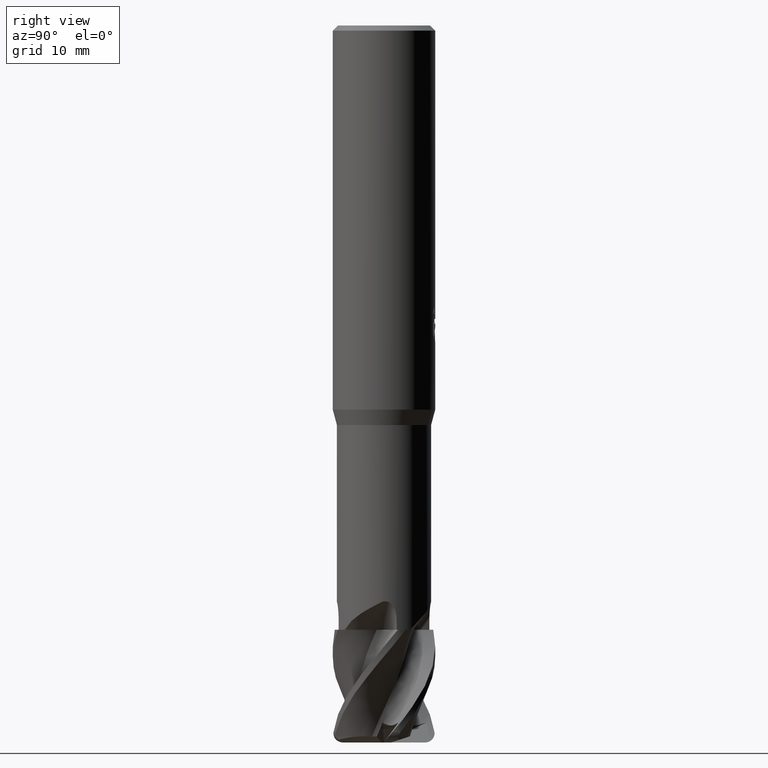
[diagram: clean part render]
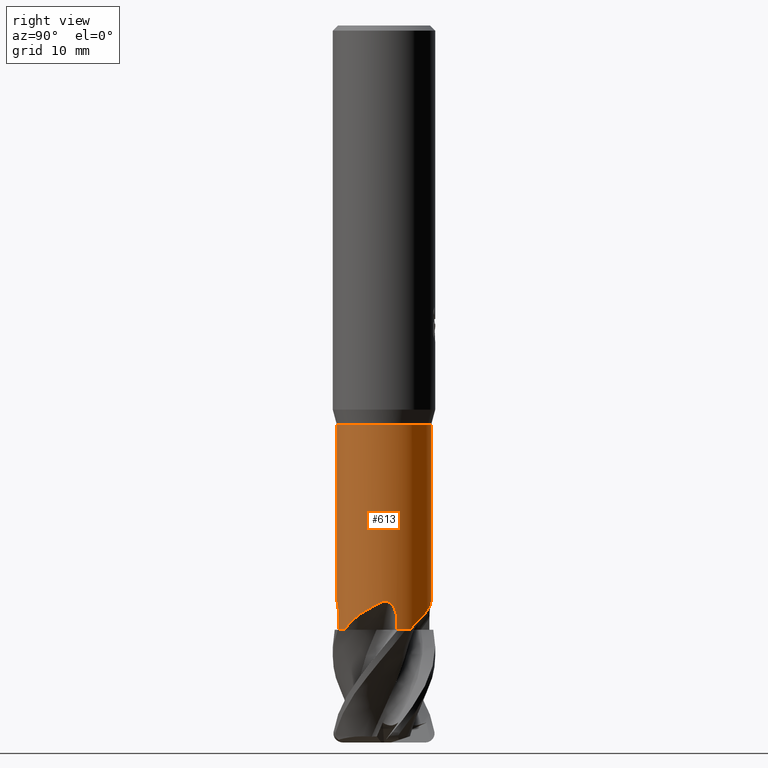
[diagram: same view with one face highlighted and labeled with its STEP entity id]
A machine part, right view. The second image highlights one B-rep face of the part: STEP entity #613.
In plain terms, the highlighted cylindrical surface (partial cylindrical patch) has radius 4.5999 mm, axis along (-0, -0, 1).
Its self-contained STEP definition (entity closure, byte-faithful):
#551=VERTEX_POINT('',#1535);
#585=EDGE_CURVE('',#1185,#551,#1571,.T.);
#613=ADVANCED_FACE('',(#1604),#1605,.T.);
#655=EDGE_CURVE('',#1185,#1083,#1648,.T.);
#663=VERTEX_POINT('',#1656);
#683=EDGE_CURVE('',#1139,#1179,#1678,.T.);
#755=EDGE_CURVE('',#903,#1043,#1757,.T.);
#903=VERTEX_POINT('',#1921);
#983=EDGE_CURVE('',#903,#1181,#2013,.T.);
#1001=EDGE_CURVE('',#1087,#1291,#2032,.T.);
#1009=EDGE_CURVE('',#1065,#663,#2040,.T.);
#1019=EDGE_CURVE('',#1043,#1083,#2051,.T.);
#1043=VERTEX_POINT('',#2076);
#1065=VERTEX_POINT('',#2100);
#1083=VERTEX_POINT('',#2118);
#1087=VERTEX_POINT('',#2122);
#1093=EDGE_CURVE('',#663,#1291,#2129,.T.);
#1139=VERTEX_POINT('',#2177);
#1147=EDGE_CURVE('',#1065,#551,#2187,.T.);
#1179=VERTEX_POINT('',#2220);
#1181=VERTEX_POINT('',#2222);
#1185=VERTEX_POINT('',#2226);
#1213=EDGE_CURVE('',#1087,#1139,#2257,.T.);
#1291=VERTEX_POINT('',#2338);
#1441=EDGE_CURVE('',#1179,#1181,#2502,.T.);
#1535=CARTESIAN_POINT('',(5.63312799726524E-016,-4.59995,-39.0));
#1571=CIRCLE('',#3029,4.59995);
#1604=FACE_OUTER_BOUND('',#3134,.T.);
#1605=CYLINDRICAL_SURFACE('',#3135,4.59995);
#1648=LINE('',#3401,#3402);
#1656=CARTESIAN_POINT('',(1.22963651752001,-4.43255389558675,-57.878123541257));
#1678=B_SPLINE_CURVE_WITH_KNOTS('',3,(#3691,#3692,#3693,#3694,#3695,#3696,#3697,#3698,#3699,#3700,#3701,#3702,#3703,#3704),.UNSPECIFIED.,.F.,.F.,(4,2,2,2,2,2,4),(0.0,0.365524080848811,0.678645118867202,1.01233447023144,1.46877266735429,2.00866642150913,2.57798926064131),.UNSPECIFIED.);
#1757=B_SPLINE_CURVE_WITH_KNOTS('',3,(#4629,#4630,#4631,#4632,#4633,#4634,#4635,#4636),.UNSPECIFIED.,.F.,.F.,(4,2,2,4),(0.0,1.70493436532074,3.59896437571384,5.17647264823594),.UNSPECIFIED.);
#1921=CARTESIAN_POINT('',(3.84286764021476,2.52822236013573,-59.0));
#2013=CIRCLE('',#6270,4.59995);
#2032=CIRCLE('',#6339,4.59995);
#2040=B_SPLINE_CURVE_WITH_KNOTS('',3,(#6348,#6349,#6350,#6351,#6352,#6353,#6354,#6355,#6356,#6357,#6358,#6359,#6360,#6361),.UNSPECIFIED.,.F.,.F.,(4,2,2,2,2,2,4),(0.0,0.365524080848672,0.678645118866895,1.01233447023093,1.46877266735348,2.00866642150786,2.57798926063941),.UNSPECIFIED.);
#2051=B_SPLINE_CURVE_WITH_KNOTS('',3,(#6375,#6376,#6377,#6378,#6379,#6380,#6381,#6382,#6383,#6384,#6385,#6386,#6387,#6388),.UNSPECIFIED.,.F.,.F.,(4,2,2,2,2,2,4),(0.0,0.365524080848705,0.678645118867021,1.01233447023124,1.46877266735394,2.00866642150856,2.57798926064061),.UNSPECIFIED.);
#2076=CARTESIAN_POINT('',(0.252822042534228,4.59299695376655,-56.2942715364834));
#2100=CARTESIAN_POINT('',(2.14314050189725E-014,-4.59994999999999,-56.2246315196213));
#2118=CARTESIAN_POINT('',(-2.09873158091224E-014,4.59995000000002,-56.2246315196213));
#2122=CARTESIAN_POINT('',(2.52822236013545,-3.84286764021494,-59.0000000000003));
#2129=B_SPLINE_CURVE_WITH_KNOTS('',3,(#7027,#7028,#7029,#7030),.UNSPECIFIED.,.F.,.F.,(4,4),(0.0,1.12205344353516),.UNSPECIFIED.);
#2177=CARTESIAN_POINT('',(4.59299695376655,-0.252822042534228,-56.2942715364834));
#2187=LINE('',#7563,#7564);
#2220=CARTESIAN_POINT('',(4.43255389558675,1.22963651752001,-57.878123541257));
#2222=CARTESIAN_POINT('',(4.42682930070273,1.25008893481215,-59.0000000000003));
#2226=CARTESIAN_POINT('',(0.0,4.59995,-39.0));
#2257=B_SPLINE_CURVE_WITH_KNOTS('',3,(#7776,#7777,#7778,#7779,#7780,#7781,#7782,#7783),.UNSPECIFIED.,.F.,.F.,(4,2,2,4),(0.0,1.70493436532079,3.59896437571399,5.17647264823618),.UNSPECIFIED.);
#2338=CARTESIAN_POINT('',(1.25008893481215,-4.42682930070273,-59.0));
#2502=B_SPLINE_CURVE_WITH_KNOTS('',3,(#8717,#8718,#8719,#8720),.UNSPECIFIED.,.F.,.F.,(4,4),(0.0,1.12205344353429),.UNSPECIFIED.);
#3029=AXIS2_PLACEMENT_3D('',#9094,#9095,#9096);
#3134=EDGE_LOOP('',(#9158,#9159,#9160,#9161,#9162,#9163,#9164,#9165,#9166,#9167,#9168,#9169));
#3135=AXIS2_PLACEMENT_3D('',#9170,#9171,#9172);
#3401=CARTESIAN_POINT('',(-5.63312799726525E-016,4.59995,-49.0));
#3402=VECTOR('',#9188,1.0);
#3691=CARTESIAN_POINT('',(4.59299695376691,-0.252822042527875,-56.2942715367445));
#3692=CARTESIAN_POINT('',(4.59917536210663,-0.140579413682264,-56.2472743387875));
#3693=CARTESIAN_POINT('',(4.6015050018606,-0.0222391737781163,-56.2189270971655));
#3694=CARTESIAN_POINT('',(4.59662375880453,0.203599437063091,-56.2164349155583));
#3695=CARTESIAN_POINT('',(4.59086738780989,0.30477823122113,-56.2352070784524));
#3696=CARTESIAN_POINT('',(4.57337745711744,0.504429436288313,-56.3137566058897));
#3697=CARTESIAN_POINT('',(4.56176093526769,0.597352663287116,-56.3741836323979));
#3698=CARTESIAN_POINT('',(4.53258102227784,0.792627634337994,-56.5482180583207));
#3699=CARTESIAN_POINT('',(4.51460655396237,0.885211714248815,-56.6724596358706));
#3700=CARTESIAN_POINT('',(4.48014286557989,1.04684276685843,-56.9614944184399));
#3701=CARTESIAN_POINT('',(4.46393734532521,1.11124086318456,-57.1341842693715));
#3702=CARTESIAN_POINT('',(4.44056215657074,1.20134529293109,-57.4944769243216));
#3703=CARTESIAN_POINT('',(4.43359116943414,1.22589738634756,-57.6867159257964));
#3704=CARTESIAN_POINT('',(4.43255389561348,1.22963651742366,-57.8781235412576));
#4629=CARTESIAN_POINT('',(3.84286764021494,2.52822236013544,-59.0000000000003));
#4630=CARTESIAN_POINT('',(3.61860932927461,2.86909230090904,-58.6044070229937));
#4631=CARTESIAN_POINT('',(3.33678755864167,3.20075166232067,-58.263792065726));
#4632=CARTESIAN_POINT('',(2.58352377641241,3.84131996924952,-57.6005266969013));
#4633=CARTESIAN_POINT('',(2.11837474940741,4.12060520959914,-57.3044809206587));
#4634=CARTESIAN_POINT('',(1.16555455530168,4.47372734868684,-56.7701923017416));
#4635=CARTESIAN_POINT('',(0.711820593943327,4.56773132601726,-56.540202853316));
#4636=CARTESIAN_POINT('',(0.252822042534232,4.59299695376655,-56.2942715364834));
#6270=AXIS2_PLACEMENT_3D('',#9634,#9635,#9636);
#6339=AXIS2_PLACEMENT_3D('',#9647,#9648,#9649);
#6348=CARTESIAN_POINT('',(-0.252822042527869,-4.5929969537669,-56.2942715367444));
#6349=CARTESIAN_POINT('',(-0.140579413682301,-4.59917536210662,-56.2472743387874));
#6350=CARTESIAN_POINT('',(-0.0222391737781287,-4.6015050018606,-56.2189270971655));
#6351=CARTESIAN_POINT('',(0.203599437063094,-4.59662375880453,-56.2164349155582));
#6352=CARTESIAN_POINT('',(0.304778231221132,-4.59086738780989,-56.2352070784523));
#6353=CARTESIAN_POINT('',(0.504429436288325,-4.57337745711744,-56.3137566058896));
#6354=CARTESIAN_POINT('',(0.59735266328713,-4.5617609352677,-56.3741836323979));
#6355=CARTESIAN_POINT('',(0.792627634337991,-4.53258102227785,-56.5482180583206));
#6356=CARTESIAN_POINT('',(0.885211714248804,-4.51460655396238,-56.6724596358705));
#6357=CARTESIAN_POINT('',(1.04684276685844,-4.4801428655799,-56.9614944184399));
#6358=CARTESIAN_POINT('',(1.11124086318456,-4.46393734532519,-57.1341842693714));
#6359=CARTESIAN_POINT('',(1.2013452929311,-4.44056215657073,-57.4944769243215));
#6360=CARTESIAN_POINT('',(1.22589738634758,-4.43359116943415,-57.6867159257963));
#6361=CARTESIAN_POINT('',(1.22963651742368,-4.43255389561348,-57.8781235412576));
#6375=CARTESIAN_POINT('',(0.252822042527875,4.59299695376691,-56.2942715367445));
#6376=CARTESIAN_POINT('',(0.140579413682296,4.59917536210663,-56.2472743387875));
#6377=CARTESIAN_POINT('',(0.0222391737781297,4.6015050018606,-56.2189270971655));
#6378=CARTESIAN_POINT('',(-0.203599437063108,4.59662375880453,-56.2164349155583));
#6379=CARTESIAN_POINT('',(-0.304778231221161,4.59086738780988,-56.2352070784524));
#6380=CARTESIAN_POINT('',(-0.504429436288306,4.57337745711744,-56.3137566058896));
#6381=CARTESIAN_POINT('',(-0.597352663287099,4.56176093526769,-56.3741836323979));
#6382=CARTESIAN_POINT('',(-0.792627634337987,4.53258102227784,-56.5482180583207));
#6383=CARTESIAN_POINT('',(-0.885211714248802,4.51460655396237,-56.6724596358705));
#6384=CARTESIAN_POINT('',(-1.04684276685844,4.48014286557989,-56.9614944184399));
#6385=CARTESIAN_POINT('',(-1.11124086318457,4.4639373453252,-57.1341842693715));
#6386=CARTESIAN_POINT('',(-1.20134529293109,4.44056215657074,-57.4944769243216));
#6387=CARTESIAN_POINT('',(-1.22589738634756,4.43359116943415,-57.6867159257964));
#6388=CARTESIAN_POINT('',(-1.22963651742366,4.43255389561348,-57.8781235412576));
#7027=CARTESIAN_POINT('',(1.22963651752002,-4.43255389558675,-57.8781235412569));
#7028=CARTESIAN_POINT('',(1.23694142195885,-4.43052743917662,-58.2520645224527));
#7029=CARTESIAN_POINT('',(1.24376399493275,-4.42861539562971,-58.6260394030789));
#7030=CARTESIAN_POINT('',(1.25008893481216,-4.42682930070273,-59.0000000000004));
#7563=CARTESIAN_POINT('',(5.63312799726524E-016,-4.59995,-49.0));
#7564=VECTOR('',#9759,1.0);
#7776=CARTESIAN_POINT('',(2.52822236013544,-3.84286764021494,-59.0000000000003));
#7777=CARTESIAN_POINT('',(2.86909230090905,-3.61860932927461,-58.6044070229937));
#7778=CARTESIAN_POINT('',(3.20075166232067,-3.33678755864166,-58.263792065726));
#7779=CARTESIAN_POINT('',(3.84131996924952,-2.58352377641241,-57.6005266969013));
#7780=CARTESIAN_POINT('',(4.12060520959915,-2.11837474940739,-57.3044809206587));
#7781=CARTESIAN_POINT('',(4.47372734868683,-1.1655545553017,-56.7701923017417));
#7782=CARTESIAN_POINT('',(4.56773132601726,-0.711820593943338,-56.540202853316));
#7783=CARTESIAN_POINT('',(4.59299695376655,-0.252822042534232,-56.2942715364834));
#8717=CARTESIAN_POINT('',(4.43255389558675,1.22963651752001,-57.878123541257));
#8718=CARTESIAN_POINT('',(4.43052743917661,1.23694142195884,-58.2520645224525));
#8719=CARTESIAN_POINT('',(4.42861539562972,1.24376399493273,-58.6260394030786));
#8720=CARTESIAN_POINT('',(4.42682930070273,1.25008893481215,-59.0));
#9094=CARTESIAN_POINT('',(0.0,0.0,-39.0));
#9095=DIRECTION('',(0.0,0.0,-1.0));
#9096=DIRECTION('',(0.0,1.0,0.0));
#9158=ORIENTED_EDGE('',*,*,#655,.F.);
#9159=ORIENTED_EDGE('',*,*,#585,.T.);
#9160=ORIENTED_EDGE('',*,*,#1147,.F.);
#9161=ORIENTED_EDGE('',*,*,#1009,.T.);
#9162=ORIENTED_EDGE('',*,*,#1093,.T.);
#9163=ORIENTED_EDGE('',*,*,#1001,.F.);
#9164=ORIENTED_EDGE('',*,*,#1213,.T.);
#9165=ORIENTED_EDGE('',*,*,#683,.T.);
#9166=ORIENTED_EDGE('',*,*,#1441,.T.);
#9167=ORIENTED_EDGE('',*,*,#983,.F.);
#9168=ORIENTED_EDGE('',*,*,#755,.T.);
#9169=ORIENTED_EDGE('',*,*,#1019,.T.);
#9170=CARTESIAN_POINT('',(0.0,0.0,-49.0));
#9171=DIRECTION('',(-0.0,-0.0,1.0));
#9172=DIRECTION('',(0.0,1.0,0.0));
#9188=DIRECTION('',(0.0,0.0,-1.0));
#9634=CARTESIAN_POINT('',(0.0,0.0,-59.0));
#9635=DIRECTION('',(0.0,0.0,-1.0));
#9636=DIRECTION('',(0.0,1.0,0.0));
#9647=CARTESIAN_POINT('',(0.0,0.0,-59.0));
#9648=DIRECTION('',(0.0,0.0,-1.0));
#9649=DIRECTION('',(0.0,1.0,0.0));
#9759=DIRECTION('',(-0.0,-0.0,1.0));